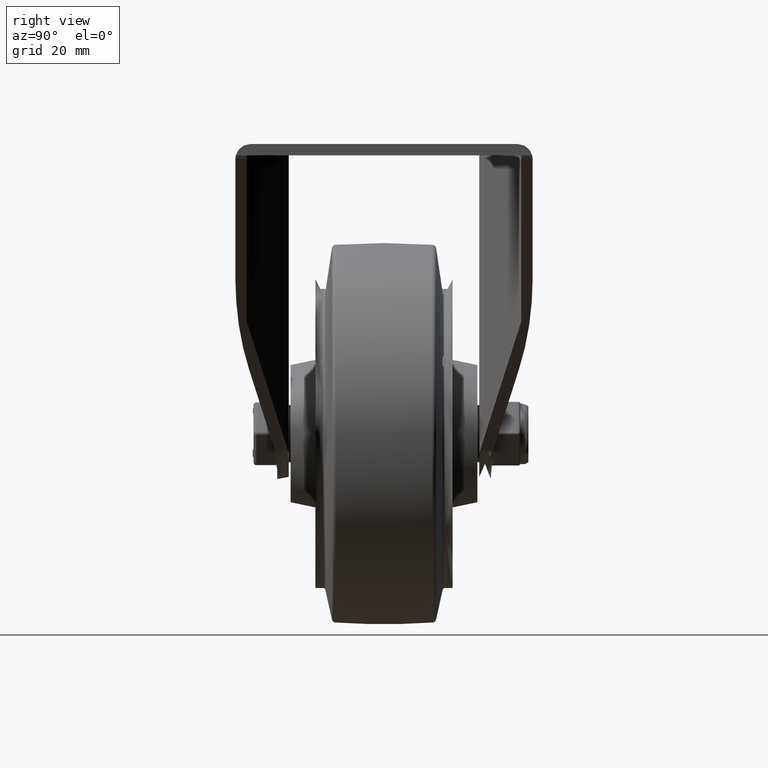
[diagram: clean part render]
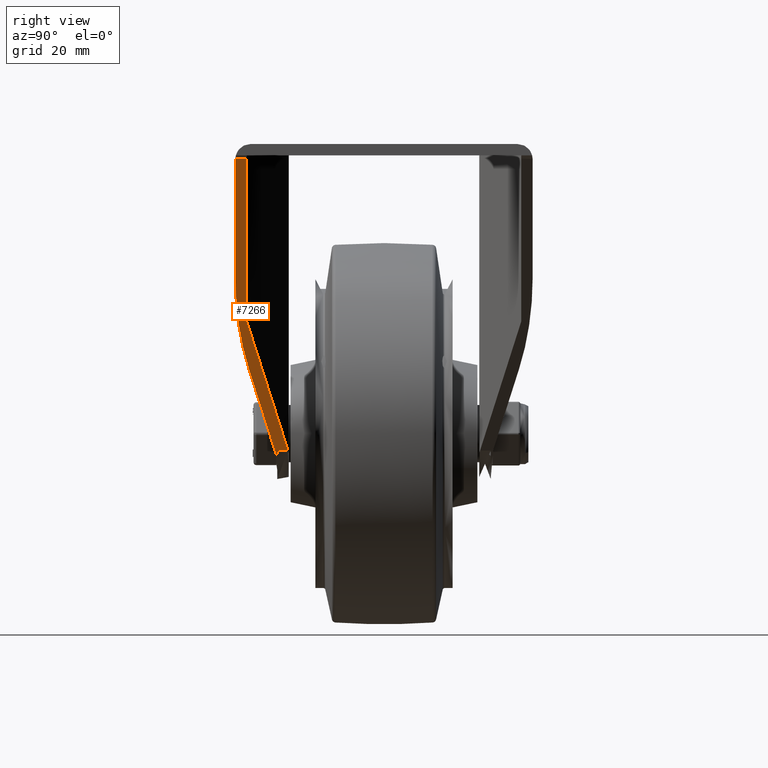
[diagram: same view with one face highlighted and labeled with its STEP entity id]
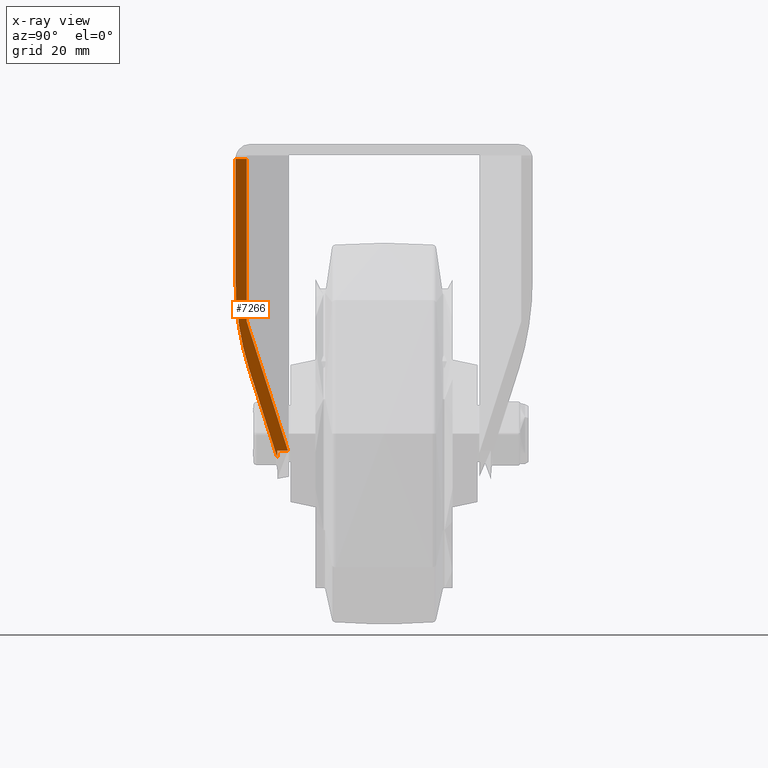
[diagram: x-ray of the same camera — body ghosted, the highlighted face saturated]
A machine part, right view. The second image highlights one B-rep face of the part: STEP entity #7266.
The next image is the same camera in x-ray: the body ghosted, the highlighted face saturated — about 0% of this face is hidden behind the body in this view.
In plain terms, the highlighted planar face has unit normal (0.8574, 0, -0.5146).
Its self-contained STEP definition (entity closure, byte-faithful):
#512=ELLIPSE('',#7878,59.2643544886226,30.5);
#513=ELLIPSE('',#7881,4.66524308155358,4.);
#1078=FACE_OUTER_BOUND('',#1520,.T.);
#1520=EDGE_LOOP('',(#5140,#5141,#5142,#5143,#5144,#5145,#5146,#5147,#5148,
#5149));
#1988=LINE('',#10737,#2539);
#1998=LINE('',#10774,#2549);
#2007=LINE('',#10830,#2558);
#2008=LINE('',#10832,#2559);
#2016=LINE('',#10856,#2567);
#2029=LINE('',#10895,#2580);
#2033=LINE('',#10906,#2584);
#2034=LINE('',#10910,#2585);
#2539=VECTOR('',#8704,10.);
#2549=VECTOR('',#8742,1.);
#2558=VECTOR('',#8771,1.);
#2559=VECTOR('',#8774,1.);
#2567=VECTOR('',#8796,10.);
#2580=VECTOR('',#8837,1.);
#2584=VECTOR('',#8849,10.);
#2585=VECTOR('',#8854,1.);
#3100=VERTEX_POINT('',#10735);
#3101=VERTEX_POINT('',#10736);
#3112=VERTEX_POINT('',#10769);
#3114=VERTEX_POINT('',#10772);
#3122=VERTEX_POINT('',#10803);
#3127=VERTEX_POINT('',#10828);
#3148=VERTEX_POINT('',#10894);
#3150=VERTEX_POINT('',#10900);
#3151=VERTEX_POINT('',#10904);
#3152=VERTEX_POINT('',#10908);
#3828=EDGE_CURVE('',#3100,#3101,#1988,.T.);
#3847=EDGE_CURVE('',#3112,#3114,#1998,.T.);
#3865=EDGE_CURVE('',#3127,#3122,#2007,.T.);
#3866=EDGE_CURVE('',#3101,#3127,#2008,.T.);
#3879=EDGE_CURVE('',#3122,#3114,#2016,.T.);
#3898=EDGE_CURVE('',#3148,#3112,#2029,.T.);
#3901=EDGE_CURVE('',#3148,#3150,#512,.T.);
#3904=EDGE_CURVE('',#3150,#3151,#2033,.T.);
#3905=EDGE_CURVE('',#3151,#3152,#513,.T.);
#3906=EDGE_CURVE('',#3100,#3152,#2034,.T.);
#5140=ORIENTED_EDGE('',*,*,#3905,.F.);
#5141=ORIENTED_EDGE('',*,*,#3904,.F.);
#5142=ORIENTED_EDGE('',*,*,#3901,.F.);
#5143=ORIENTED_EDGE('',*,*,#3898,.T.);
#5144=ORIENTED_EDGE('',*,*,#3847,.T.);
#5145=ORIENTED_EDGE('',*,*,#3879,.F.);
#5146=ORIENTED_EDGE('',*,*,#3865,.F.);
#5147=ORIENTED_EDGE('',*,*,#3866,.F.);
#5148=ORIENTED_EDGE('',*,*,#3828,.F.);
#5149=ORIENTED_EDGE('',*,*,#3906,.T.);
#7072=PLANE('',#7880);
#7266=ADVANCED_FACE('',(#1078),#7072,.T.);
#7878=AXIS2_PLACEMENT_3D('',#10901,#8843,#8844);
#7880=AXIS2_PLACEMENT_3D('',#10907,#8850,#8851);
#7881=AXIS2_PLACEMENT_3D('',#10909,#8852,#8853);
#8704=DIRECTION('',(-0.514643249946396,0.,-0.857404411747812));
#8742=DIRECTION('',(-0.496393913974721,0.263937325879715,-0.827000707482359));
#8771=DIRECTION('',(0.,-1.,0.));
#8774=DIRECTION('',(-0.496393913974721,0.263937325879715,-0.827000707482359));
#8796=DIRECTION('',(-0.514643249946396,0.,-0.857404411747812));
#8837=DIRECTION('',(-0.496393913974721,0.263937325879715,-0.827000707482359));
#8843=DIRECTION('center_axis',(-0.857404411747812,0.,0.514643249946396));
#8844=DIRECTION('ref_axis',(-0.514643249946396,3.74668056103874E-17,-0.857404411747812));
#8849=DIRECTION('',(0.514643249946396,0.,0.857404411747812));
#8850=DIRECTION('center_axis',(0.857404411747812,0.,-0.514643249946396));
#8851=DIRECTION('ref_axis',(0.,-1.,0.));
#8852=DIRECTION('center_axis',(-0.857404411747812,0.,0.514643249946396));
#8853=DIRECTION('ref_axis',(0.514643249946396,1.18988764917201E-16,0.857404411747812));
#8854=DIRECTION('',(0.,-1.,0.));
#10735=CARTESIAN_POINT('',(540.676289126237,-86.1951092699324,-3.94027814684539));
#10736=CARTESIAN_POINT('',(515.063553092014,-86.1951092699324,-46.6115322145181));
#10737=CARTESIAN_POINT('',(514.177740288951,-86.1951092699324,-48.0873114177));
#10769=CARTESIAN_POINT('',(494.761983868417,-78.7982835882847,-80.4342919991426));
#10772=CARTESIAN_POINT('',(493.627577964675,-78.1951092699324,-82.3242315381965));
#10774=CARTESIAN_POINT('',(480.114521029194,-71.0100894467586,-104.837214335286));
#10803=CARTESIAN_POINT('',(494.761983868417,-78.1951092699324,-80.4342919991423));
#10828=CARTESIAN_POINT('',(494.761983868417,-75.4005734362178,-80.4342919991423));
#10830=CARTESIAN_POINT('',(494.761983868417,151.332448713848,-80.4342919991423));
#10832=CARTESIAN_POINT('',(480.559678420064,-67.8490736779911,-104.095574547153));
#10856=CARTESIAN_POINT('',(505.498633516388,-78.1951092699324,-62.5468509872958));
#10894=CARTESIAN_POINT('',(507.601190505232,-85.6250108521297,-59.0439552660886));
#10895=CARTESIAN_POINT('',(480.114521029194,-71.0100894467586,-104.837214335286));
#10900=CARTESIAN_POINT('',(521.920073170202,-89.1951092699324,-35.1884530914782));
#10901=CARTESIAN_POINT('Origin',(521.920073170202,-58.6951092699324,-35.1884530914783));
#10904=CARTESIAN_POINT('',(540.640442041502,-89.1951092699324,-4.));
#10906=CARTESIAN_POINT('',(500.691902637127,-89.1951092699324,-70.5549464250427));
#10907=CARTESIAN_POINT('Origin',(541.187939750939,151.332448713848,-3.0878594996784));
#10908=CARTESIAN_POINT('',(540.676289126237,-89.1946634076152,-3.94027814684539));
#10909=CARTESIAN_POINT('Origin',(540.640442041502,-85.1951092699324,-4.));
#10910=CARTESIAN_POINT('',(540.676289126237,-89.0680926161398,-3.94027814684539));